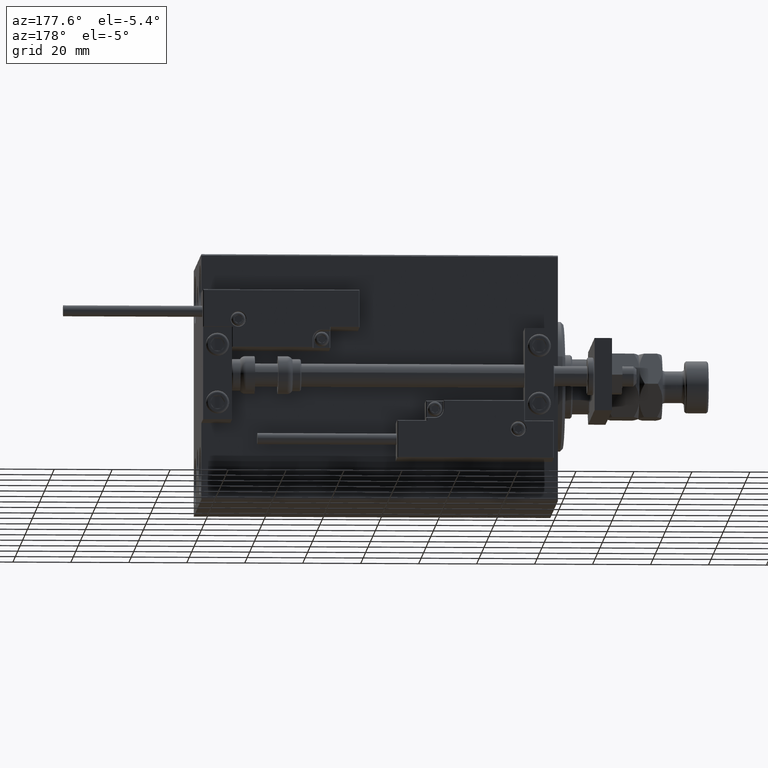
[diagram: clean part render]
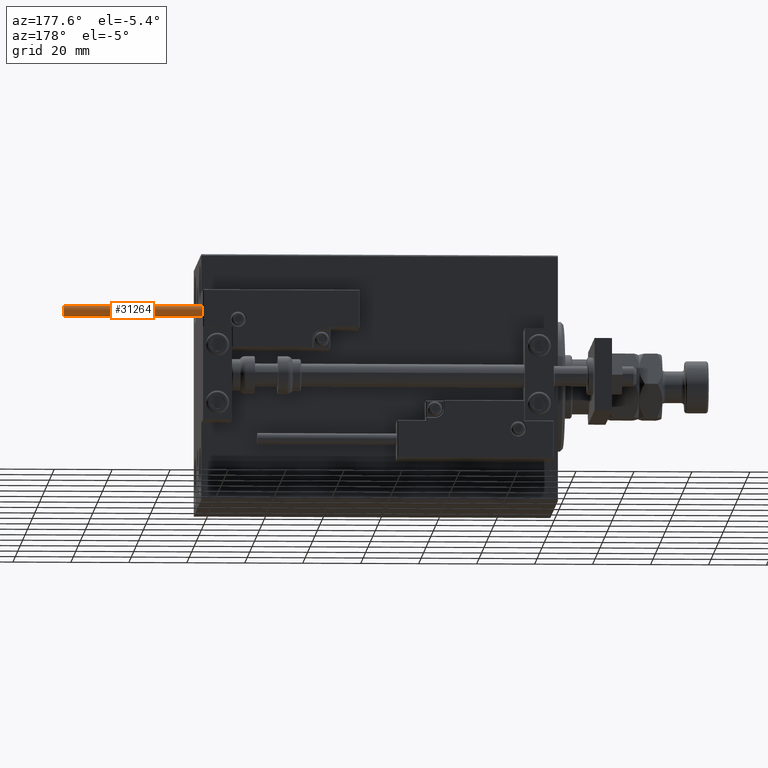
[diagram: same view with one face highlighted and labeled with its STEP entity id]
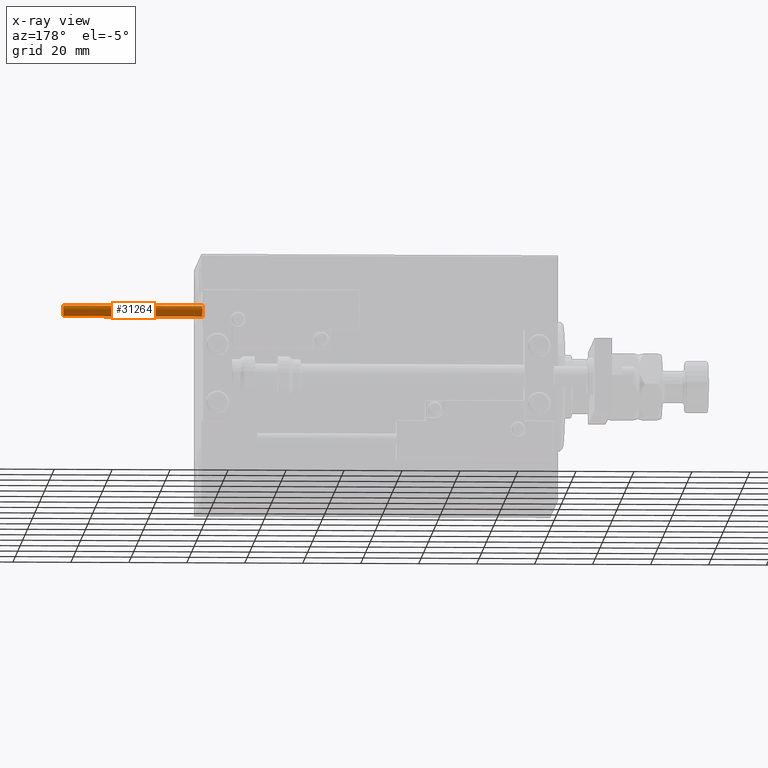
[diagram: x-ray of the same camera — body ghosted, the highlighted face saturated]
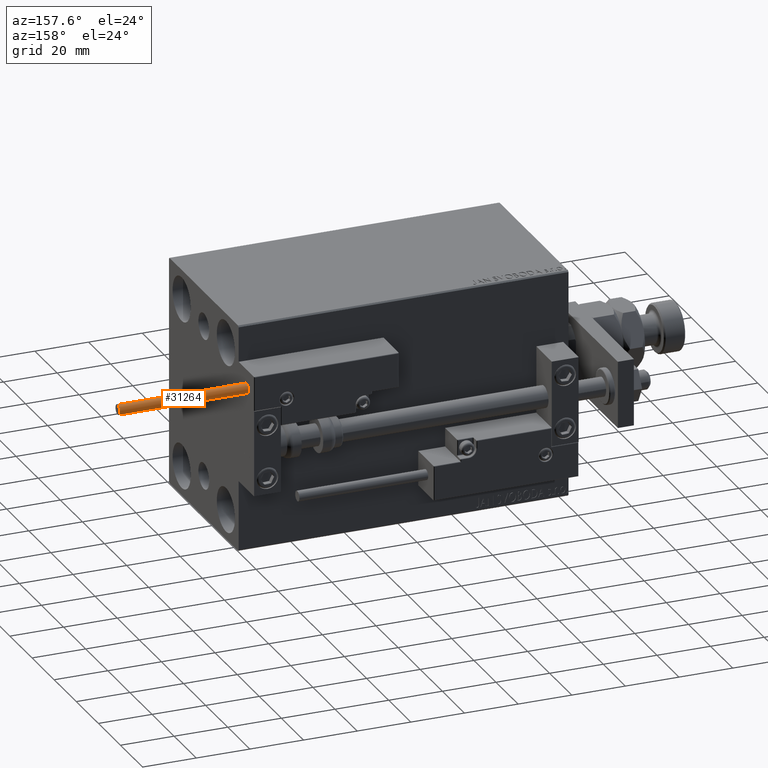
[diagram: same view with one face highlighted and labeled with its STEP entity id]
A machine part, auxiliary view. The second image highlights one B-rep face of the part: STEP entity #31264.
The next image is the same camera in x-ray: the body ghosted, the highlighted face saturated — about 0% of this face is hidden behind the body in this view.
A second angle (auxiliary view) of the same face is appended — the face is thin or edge-on in the first view.
In plain terms, the highlighted cylindrical surface (edge-blend (fillet) strip) has radius 1.9 mm, axis along (-1, -0, 0).
Its self-contained STEP definition (entity closure, byte-faithful):
#680 = DIRECTION ( 'NONE',  ( 0.000000000000000000, 0.000000000000000000, 1.000000000000000000 ) ) ;
#4108 = CIRCLE ( 'NONE', #9976, 1.899999999999999467 ) ;
#4881 = AXIS2_PLACEMENT_3D ( 'NONE', #31924, #31679, #16495 ) ;
#5140 = CARTESIAN_POINT ( 'NONE',  ( 1.899999999999999467, 2.326828918379970872E-16, 0.000000000000000000 ) ) ;
#8120 = CARTESIAN_POINT ( 'NONE',  ( 1.899999999999999467, 2.326828918379970872E-16, 48.00000000000000000 ) ) ;
#9038 = CARTESIAN_POINT ( 'NONE',  ( 0.000000000000000000, 0.000000000000000000, 0.000000000000000000 ) ) ;
#9976 = AXIS2_PLACEMENT_3D ( 'NONE', #9038, #680, #12208 ) ;
#10062 = VECTOR ( 'NONE', #12856, 1000.000000000000000 ) ;
#10173 = VERTEX_POINT ( 'NONE', #46429 ) ;
#10803 = VERTEX_POINT ( 'NONE', #13613 ) ;
#12208 = DIRECTION ( 'NONE',  ( 1.000000000000000000, 0.000000000000000000, 0.000000000000000000 ) ) ;
#12797 = EDGE_CURVE ( 'NONE', #14852, #10173, #48702, .T. ) ;
#12856 = DIRECTION ( 'NONE',  ( -0.000000000000000000, -0.000000000000000000, -1.000000000000000000 ) ) ;
#13613 = CARTESIAN_POINT ( 'NONE',  ( 1.899999999999999467, 2.326828918379970872E-16, 48.00000000000000000 ) ) ;
#14282 = CARTESIAN_POINT ( 'NONE',  ( 0.000000000000000000, 0.000000000000000000, 48.00000000000000000 ) ) ;
#14852 = VERTEX_POINT ( 'NONE', #40798 ) ;
#16495 = DIRECTION ( 'NONE',  ( 1.000000000000000000, 0.000000000000000000, 0.000000000000000000 ) ) ;
#16593 = EDGE_CURVE ( 'NONE', #10803, #22901, #51295, .T. ) ;
#17622 = ORIENTED_EDGE ( 'NONE', *, *, #35966, .F. ) ;
#22901 = VERTEX_POINT ( 'NONE', #5140 ) ;
#24392 = VECTOR ( 'NONE', #27739, 1000.000000000000000 ) ;
#27739 = DIRECTION ( 'NONE',  ( -0.000000000000000000, -0.000000000000000000, -1.000000000000000000 ) ) ;
#29715 = CYLINDRICAL_SURFACE ( 'NONE', #44006, 1.899999999999999467 ) ;
#30236 = DIRECTION ( 'NONE',  ( -0.000000000000000000, -0.000000000000000000, -1.000000000000000000 ) ) ;
#31264 = ADVANCED_FACE ( 'NONE', ( #50133 ), #29715, .T. ) ;
#31679 = DIRECTION ( 'NONE',  ( 0.000000000000000000, 0.000000000000000000, 1.000000000000000000 ) ) ;
#31924 = CARTESIAN_POINT ( 'NONE',  ( 0.000000000000000000, 0.000000000000000000, 48.00000000000000000 ) ) ;
#33605 = EDGE_LOOP ( 'NONE', ( #17622, #45938, #45684, #39557 ) ) ;
#35908 = CARTESIAN_POINT ( 'NONE',  ( -1.899999999999999467, 0.000000000000000000, 48.00000000000000000 ) ) ;
#35966 = EDGE_CURVE ( 'NONE', #10803, #14852, #50825, .T. ) ;
#39557 = ORIENTED_EDGE ( 'NONE', *, *, #12797, .F. ) ;
#40798 = CARTESIAN_POINT ( 'NONE',  ( -1.899999999999999467, 0.000000000000000000, 48.00000000000000000 ) ) ;
#44006 = AXIS2_PLACEMENT_3D ( 'NONE', #14282, #30236, #46196 ) ;
#45684 = ORIENTED_EDGE ( 'NONE', *, *, #49597, .T. ) ;
#45938 = ORIENTED_EDGE ( 'NONE', *, *, #16593, .T. ) ;
#46196 = DIRECTION ( 'NONE',  ( -1.000000000000000000, 0.000000000000000000, 0.000000000000000000 ) ) ;
#46429 = CARTESIAN_POINT ( 'NONE',  ( -1.899999999999999467, 0.000000000000000000, 0.000000000000000000 ) ) ;
#48702 = LINE ( 'NONE', #35908, #10062 ) ;
#49597 = EDGE_CURVE ( 'NONE', #22901, #10173, #4108, .T. ) ;
#50133 = FACE_OUTER_BOUND ( 'NONE', #33605, .T. ) ;
#50825 = CIRCLE ( 'NONE', #4881, 1.899999999999999467 ) ;
#51295 = LINE ( 'NONE', #8120, #24392 ) ;